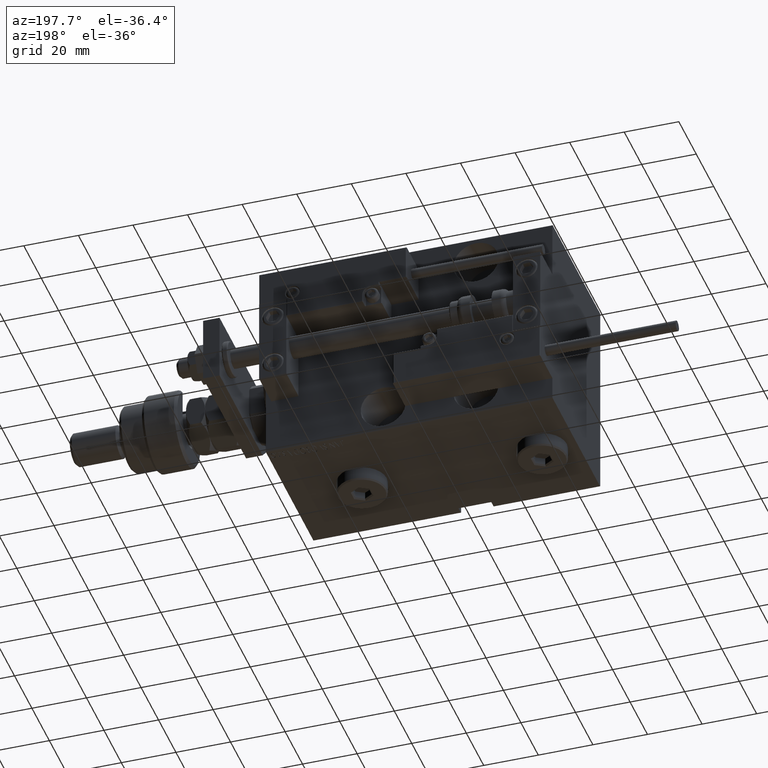
[diagram: clean part render]
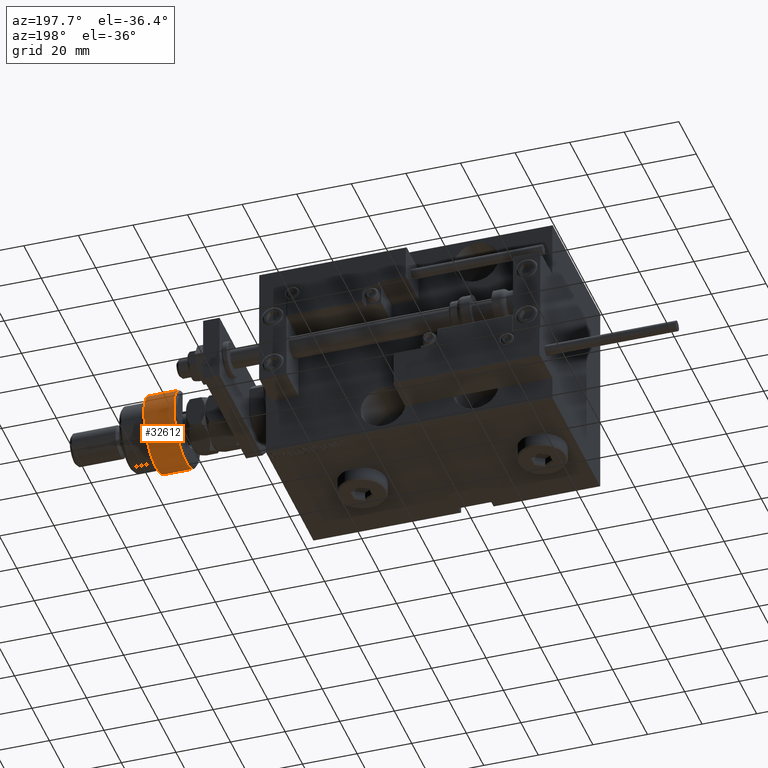
[diagram: same view with one face highlighted and labeled with its STEP entity id]
A machine part, auxiliary view. The second image highlights one B-rep face of the part: STEP entity #32612.
In plain terms, the highlighted cylindrical surface (partial cylindrical patch) has radius 14 mm, axis along (-1, -0, 0).
Its self-contained STEP definition (entity closure, byte-faithful):
#599 = VECTOR ( 'NONE', #20710, 1000.000000000000000 ) ;
#997 = LINE ( 'NONE', #24809, #599 ) ;
#1693 = FACE_OUTER_BOUND ( 'NONE', #21802, .T. ) ;
#2213 = VERTEX_POINT ( 'NONE', #19604 ) ;
#2442 = VERTEX_POINT ( 'NONE', #13539 ) ;
#3769 = AXIS2_PLACEMENT_3D ( 'NONE', #40582, #15431, #7216 ) ;
#5596 = ORIENTED_EDGE ( 'NONE', *, *, #35067, .T. ) ;
#5645 = CIRCLE ( 'NONE', #15262, 14.00000000000000000 ) ;
#7216 = DIRECTION ( 'NONE',  ( 1.000000000000000000, 0.000000000000000000, 0.000000000000000000 ) ) ;
#7660 = LINE ( 'NONE', #28170, #22527 ) ;
#8324 = CARTESIAN_POINT ( 'NONE',  ( -12.64911064067351809, -5.999999999999999112, 12.00000000000002842 ) ) ;
#9881 = DIRECTION ( 'NONE',  ( -0.000000000000000000, -0.000000000000000000, -1.000000000000000000 ) ) ;
#10437 = CARTESIAN_POINT ( 'NONE',  ( 0.000000000000000000, 0.000000000000000000, 13.00000000000000000 ) ) ;
#11547 = CARTESIAN_POINT ( 'NONE',  ( 0.000000000000000000, 0.000000000000000000, 1.000000000000018208 ) ) ;
#12729 = ORIENTED_EDGE ( 'NONE', *, *, #24597, .T. ) ;
#13539 = CARTESIAN_POINT ( 'NONE',  ( 14.00000000000000000, 0.000000000000000000, 1.000000000000018208 ) ) ;
#15262 = AXIS2_PLACEMENT_3D ( 'NONE', #25756, #21114, #37802 ) ;
#15302 = CIRCLE ( 'NONE', #52847, 14.00000000000000000 ) ;
#15431 = DIRECTION ( 'NONE',  ( 0.000000000000000000, 0.000000000000000000, -1.000000000000000000 ) ) ;
#16194 = DIRECTION ( 'NONE',  ( 1.000000000000000000, 0.000000000000000000, 0.000000000000000000 ) ) ;
#18927 = DIRECTION ( 'NONE',  ( -1.000000000000000000, 0.000000000000000000, 0.000000000000000000 ) ) ;
#19604 = CARTESIAN_POINT ( 'NONE',  ( -12.64911064067351809, -5.999999999999999112, 1.000000000000021760 ) ) ;
#20386 = VERTEX_POINT ( 'NONE', #37085 ) ;
#20710 = DIRECTION ( 'NONE',  ( -0.000000000000000000, -0.000000000000000000, -1.000000000000000000 ) ) ;
#21114 = DIRECTION ( 'NONE',  ( -0.000000000000000000, -0.000000000000000000, 1.000000000000000000 ) ) ;
#21661 = EDGE_CURVE ( 'NONE', #33582, #53902, #44837, .T. ) ;
#21802 = EDGE_LOOP ( 'NONE', ( #49054, #44344, #5596, #40370, #12729 ) ) ;
#22527 = VECTOR ( 'NONE', #44602, 1000.000000000000000 ) ;
#24597 = EDGE_CURVE ( 'NONE', #2442, #20386, #5645, .T. ) ;
#24809 = CARTESIAN_POINT ( 'NONE',  ( -12.64911064067351809, 6.000000000000000000, 14.50000000000000000 ) ) ;
#25756 = CARTESIAN_POINT ( 'NONE',  ( 0.000000000000000000, 0.000000000000000000, 1.000000000000018208 ) ) ;
#28170 = CARTESIAN_POINT ( 'NONE',  ( -12.64911064067351809, -5.999999999999999112, 14.50000000000000000 ) ) ;
#28218 = DIRECTION ( 'NONE',  ( -0.000000000000000000, -0.000000000000000000, 1.000000000000000000 ) ) ;
#29946 = EDGE_CURVE ( 'NONE', #33582, #20386, #997, .T. ) ;
#32612 = ADVANCED_FACE ( 'NONE', ( #1693 ), #43547, .T. ) ;
#33582 = VERTEX_POINT ( 'NONE', #53701 ) ;
#35067 = EDGE_CURVE ( 'NONE', #53902, #2213, #7660, .T. ) ;
#37085 = CARTESIAN_POINT ( 'NONE',  ( -12.64911064067351809, 6.000000000000000000, 1.000000000000021760 ) ) ;
#37802 = DIRECTION ( 'NONE',  ( 1.000000000000000000, 0.000000000000000000, 0.000000000000000000 ) ) ;
#40370 = ORIENTED_EDGE ( 'NONE', *, *, #53240, .T. ) ;
#40582 = CARTESIAN_POINT ( 'NONE',  ( 0.000000000000000000, 0.000000000000000000, 12.00000000000002842 ) ) ;
#43547 = CYLINDRICAL_SURFACE ( 'NONE', #49511, 14.00000000000000000 ) ;
#44344 = ORIENTED_EDGE ( 'NONE', *, *, #21661, .T. ) ;
#44602 = DIRECTION ( 'NONE',  ( -0.000000000000000000, -0.000000000000000000, -1.000000000000000000 ) ) ;
#44837 = CIRCLE ( 'NONE', #3769, 14.00000000000000000 ) ;
#49054 = ORIENTED_EDGE ( 'NONE', *, *, #29946, .F. ) ;
#49511 = AXIS2_PLACEMENT_3D ( 'NONE', #10437, #9881, #18927 ) ;
#52847 = AXIS2_PLACEMENT_3D ( 'NONE', #11547, #28218, #16194 ) ;
#53240 = EDGE_CURVE ( 'NONE', #2213, #2442, #15302, .T. ) ;
#53701 = CARTESIAN_POINT ( 'NONE',  ( -12.64911064067351809, 6.000000000000000000, 12.00000000000002842 ) ) ;
#53902 = VERTEX_POINT ( 'NONE', #8324 ) ;